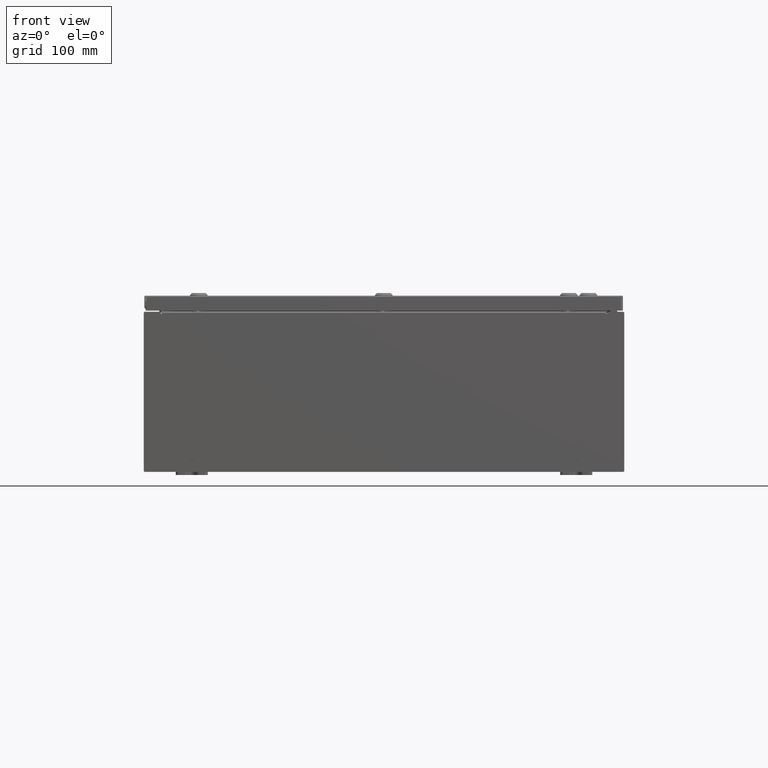
[diagram: clean part render]
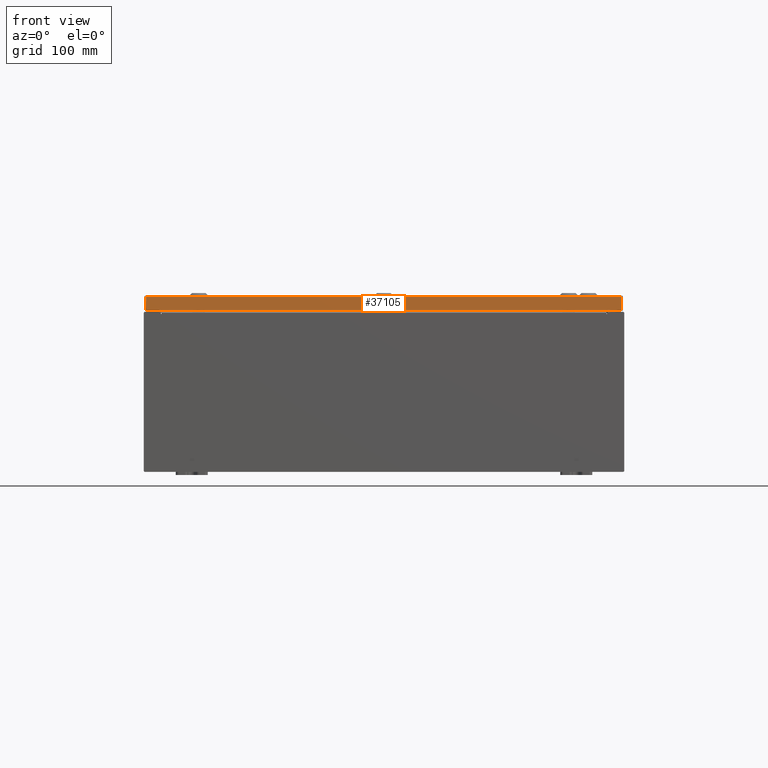
[diagram: same view with one face highlighted and labeled with its STEP entity id]
A machine part, front view. The second image highlights one B-rep face of the part: STEP entity #37105.
In plain terms, the highlighted planar face has unit normal (-0, 1, -0).
Its self-contained STEP definition (entity closure, byte-faithful):
#2229 = PLANE ( 'NONE',  #55784 ) ;
#2461 = EDGE_LOOP ( 'NONE', ( #40894, #36907, #30889, #15754 ) ) ;
#5930 = EDGE_CURVE ( 'NONE', #37027, #49207, #26361, .T. ) ;
#7303 = DIRECTION ( 'NONE',  ( -3.241995248935437300E-031, 1.000000000000000000, -2.532419924601866100E-015 ) ) ;
#10713 = EDGE_CURVE ( 'NONE', #37027, #55097, #26036, .T. ) ;
#11483 = EDGE_CURVE ( 'NONE', #38373, #49207, #31482, .T. ) ;
#13346 = VECTOR ( 'NONE', #15467, 39.37007874015748100 ) ;
#15467 = DIRECTION ( 'NONE',  ( -0.0000000000000000000, -2.532419924601866100E-015, -1.000000000000000000 ) ) ;
#15754 = ORIENTED_EDGE ( 'NONE', *, *, #57930, .F. ) ;
#24967 = DIRECTION ( 'NONE',  ( -1.000000000000000000, 4.379057701015054300E-047, 1.280196549332207500E-016 ) ) ;
#25674 = CARTESIAN_POINT ( 'NONE',  ( 14.84865786437626800, -14.93749999999999800, -0.07469999999999980800 ) ) ;
#26036 = LINE ( 'NONE', #32513, #49657 ) ;
#26361 = LINE ( 'NONE', #37284, #65071 ) ;
#26876 = LINE ( 'NONE', #25674, #13346 ) ;
#27551 = CARTESIAN_POINT ( 'NONE',  ( 4.842730403097308800E-030, -14.93749999999999800, 3.808883627975194400E-014 ) ) ;
#28332 = VECTOR ( 'NONE', #24967, 39.37007874015748100 ) ;
#30018 = CARTESIAN_POINT ( 'NONE',  ( 14.93749999999999800, -14.93750000000000000, -0.9376999999999997600 ) ) ;
#30889 = ORIENTED_EDGE ( 'NONE', *, *, #11483, .F. ) ;
#31205 = FACE_OUTER_BOUND ( 'NONE', #2461, .T. ) ;
#31482 = LINE ( 'NONE', #30018, #28332 ) ;
#31793 = DIRECTION ( 'NONE',  ( 1.000000000000000000, 3.241995248935437700E-031, -8.117058051628662200E-046 ) ) ;
#32513 = CARTESIAN_POINT ( 'NONE',  ( 14.93749999999999800, -14.93749999999999800, -0.08770000000000008300 ) ) ;
#36907 = ORIENTED_EDGE ( 'NONE', *, *, #5930, .T. ) ;
#37027 = VERTEX_POINT ( 'NONE', #57542 ) ;
#37105 = ADVANCED_FACE ( 'NONE', ( #31205 ), #2229, .F. ) ;
#37284 = CARTESIAN_POINT ( 'NONE',  ( -14.84865786437626800, -14.93749999999999800, 3.808883627975194400E-014 ) ) ;
#38373 = VERTEX_POINT ( 'NONE', #49474 ) ;
#38597 = CARTESIAN_POINT ( 'NONE',  ( -14.84865786437626400, -14.93750000000000000, -0.9376999999999959800 ) ) ;
#40894 = ORIENTED_EDGE ( 'NONE', *, *, #10713, .F. ) ;
#42683 = DIRECTION ( 'NONE',  ( 0.0000000000000000000, 2.532419924601866100E-015, 1.000000000000000000 ) ) ;
#49207 = VERTEX_POINT ( 'NONE', #38597 ) ;
#49474 = CARTESIAN_POINT ( 'NONE',  ( 14.84865786437626800, -14.93750000000000000, -0.9376999999999997600 ) ) ;
#49657 = VECTOR ( 'NONE', #31793, 39.37007874015748100 ) ;
#55097 = VERTEX_POINT ( 'NONE', #55284 ) ;
#55284 = CARTESIAN_POINT ( 'NONE',  ( 14.84865786437626400, -14.93749999999999800, -0.08770000000000008300 ) ) ;
#55784 = AXIS2_PLACEMENT_3D ( 'NONE', #27551, #7303, #42683 ) ;
#57542 = CARTESIAN_POINT ( 'NONE',  ( -14.84865786437626400, -14.93749999999999800, -0.08770000000000008300 ) ) ;
#57930 = EDGE_CURVE ( 'NONE', #55097, #38373, #26876, .T. ) ;
#62297 = DIRECTION ( 'NONE',  ( 0.0000000000000000000, -2.532419924601866100E-015, -1.000000000000000000 ) ) ;
#65071 = VECTOR ( 'NONE', #62297, 39.37007874015748100 ) ;